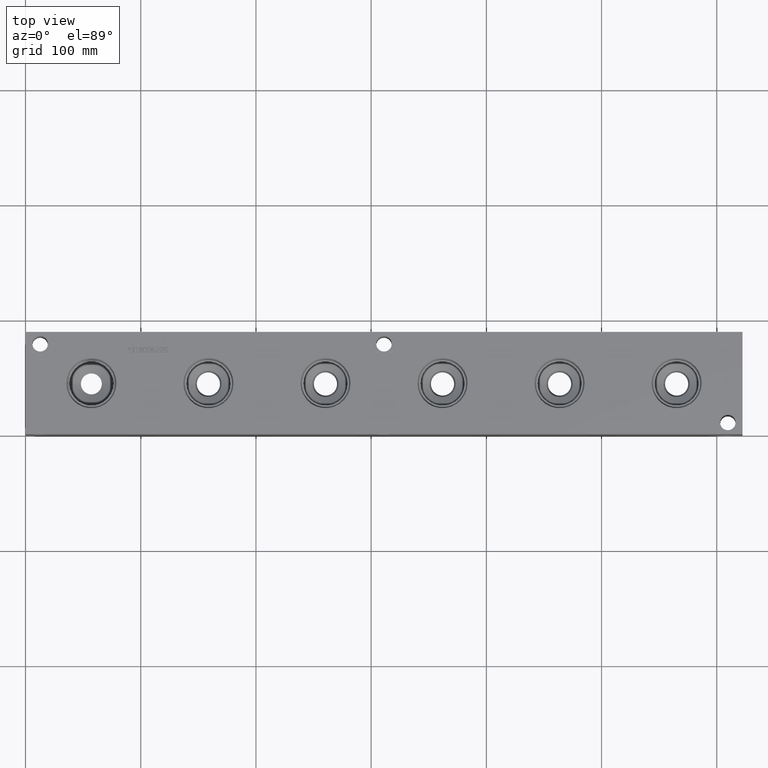
[diagram: clean part render]
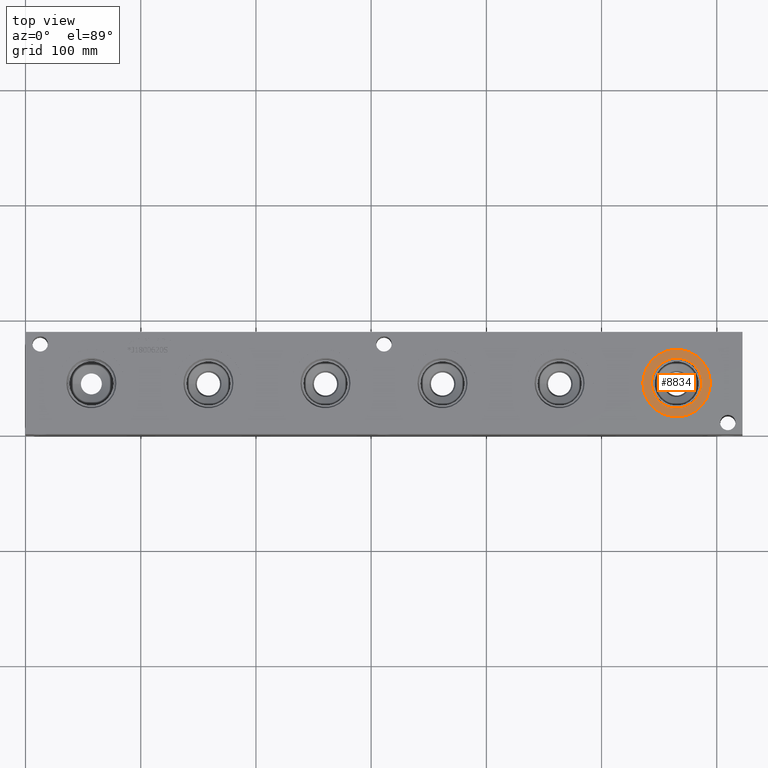
[diagram: same view with one face highlighted and labeled with its STEP entity id]
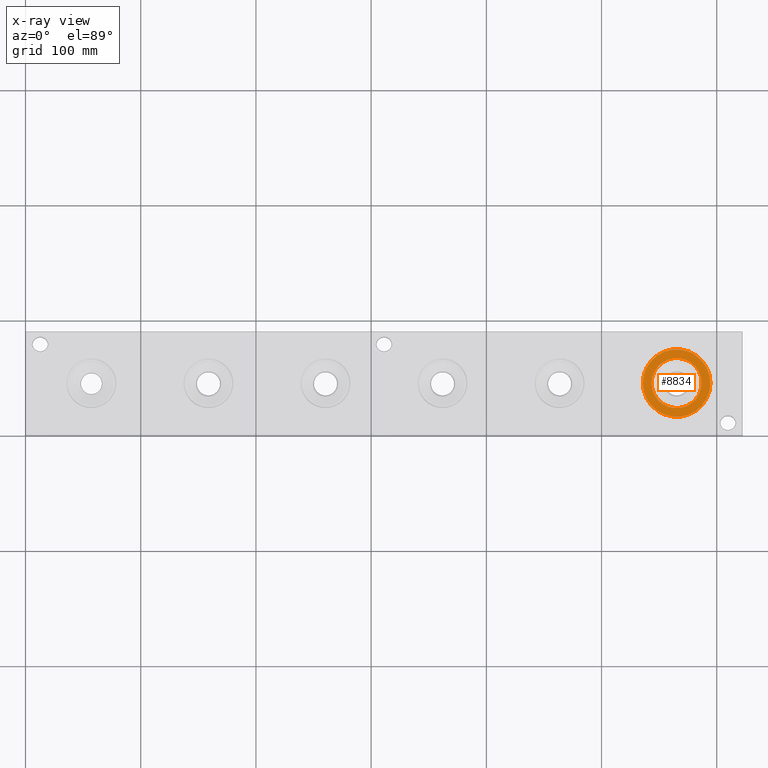
[diagram: x-ray of the same camera — body ghosted, the highlighted face saturated]
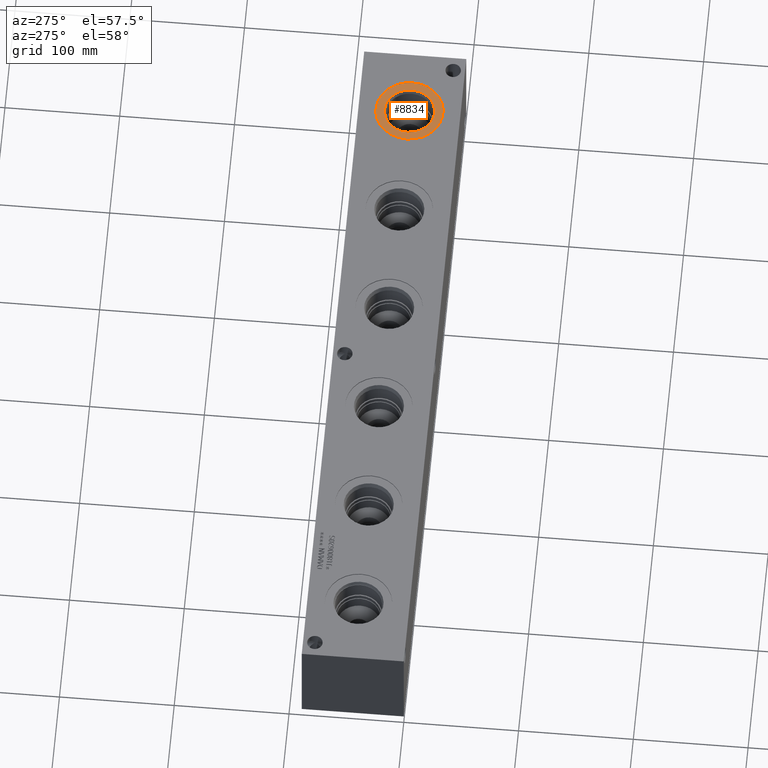
[diagram: same view with one face highlighted and labeled with its STEP entity id]
A machine part, top view. The second image highlights one B-rep face of the part: STEP entity #8834.
The next image is the same camera in x-ray: the body ghosted, the highlighted face saturated — about 0% of this face is hidden behind the body in this view.
A second angle (auxiliary view) of the same face is appended — the face is thin or edge-on in the first view.
In plain terms, the highlighted planar face has unit normal (0, 0, 1).
Its self-contained STEP definition (entity closure, byte-faithful):
#356=CIRCLE('',#9421,29.2862);
#357=CIRCLE('',#9422,29.2862);
#358=CIRCLE('',#9423,21.7551);
#434=FACE_BOUND('',#1766,.T.);
#1242=FACE_OUTER_BOUND('',#1765,.T.);
#1765=EDGE_LOOP('',(#7736,#7737));
#1766=EDGE_LOOP('',(#7738));
#4123=VERTEX_POINT('',#15341);
#4124=VERTEX_POINT('',#15342);
#4125=VERTEX_POINT('',#15345);
#5343=EDGE_CURVE('',#4123,#4124,#356,.T.);
#5344=EDGE_CURVE('',#4124,#4123,#357,.T.);
#5345=EDGE_CURVE('',#4125,#4125,#358,.T.);
#7736=ORIENTED_EDGE('',*,*,#5343,.T.);
#7737=ORIENTED_EDGE('',*,*,#5344,.T.);
#7738=ORIENTED_EDGE('',*,*,#5345,.F.);
#8073=PLANE('',#9420);
#8834=ADVANCED_FACE('',(#1242,#434),#8073,.T.);
#9420=AXIS2_PLACEMENT_3D('',#15340,#11310,#11311);
#9421=AXIS2_PLACEMENT_3D('',#15343,#11312,#11313);
#9422=AXIS2_PLACEMENT_3D('',#15344,#11314,#11315);
#9423=AXIS2_PLACEMENT_3D('',#15346,#11316,#11317);
#11310=DIRECTION('center_axis',(0.,0.,1.));
#11311=DIRECTION('ref_axis',(1.,0.,0.));
#11312=DIRECTION('center_axis',(0.,0.,1.));
#11313=DIRECTION('ref_axis',(1.,0.,0.));
#11314=DIRECTION('center_axis',(0.,0.,1.));
#11315=DIRECTION('ref_axis',(1.,0.,0.));
#11316=DIRECTION('center_axis',(0.,0.,1.));
#11317=DIRECTION('ref_axis',(1.,0.,0.));
#15340=CARTESIAN_POINT('Origin',(565.15,44.45,88.1126));
#15341=CARTESIAN_POINT('',(594.4362,44.45,88.1126));
#15342=CARTESIAN_POINT('',(535.8638,44.45,88.1126));
#15343=CARTESIAN_POINT('Origin',(565.15,44.45,88.1126));
#15344=CARTESIAN_POINT('Origin',(565.15,44.45,88.1126));
#15345=CARTESIAN_POINT('',(543.3949,44.45,88.1126));
#15346=CARTESIAN_POINT('Origin',(565.15,44.45,88.1126));